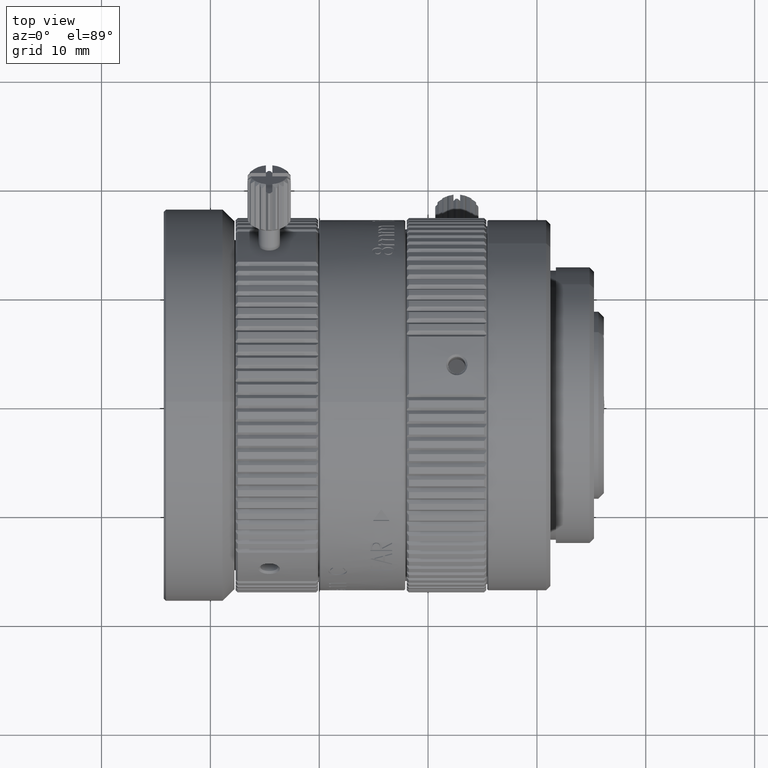
[diagram: clean part render]
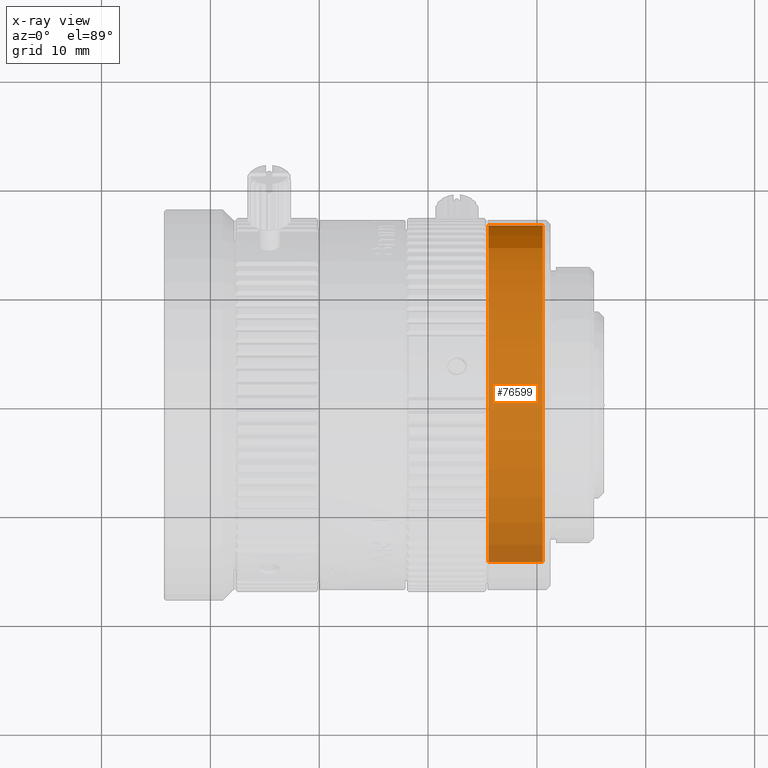
[diagram: x-ray — body ghosted, one internal face saturated and labeled with its STEP entity id]
A machine part, top view, then the same camera in x-ray: the body is ghosted and one INTERNAL B-rep face — a face not visible from any outside direction — is saturated and labeled: STEP entity #76599.
In plain terms, the highlighted cylindrical surface (partial cylindrical patch) has radius 16.5 mm, axis along (-1, 0, 0).
Its self-contained STEP definition (entity closure, byte-faithful):
#2239 = DIRECTION ( 'NONE',  ( 1.000000000000000000, -0.000000000000000000, -0.000000000000000000 ) ) ;
#5555 = CARTESIAN_POINT ( 'NONE',  ( 15.53999999999999915, -14.28941916244320609, -8.250000000000069278 ) ) ;
#9178 = AXIS2_PLACEMENT_3D ( 'NONE', #42638, #2239, #12457 ) ;
#11793 = CARTESIAN_POINT ( 'NONE',  ( 20.54000000000000270, 14.28941916244321853, 8.250000000000078160 ) ) ;
#12457 = DIRECTION ( 'NONE',  ( 0.000000000000000000, -0.8660254037844363761, -0.5000000000000039968 ) ) ;
#12794 = ORIENTED_EDGE ( 'NONE', *, *, #73450, .F. ) ;
#15654 = VERTEX_POINT ( 'NONE', #64074 ) ;
#16380 = CARTESIAN_POINT ( 'NONE',  ( 15.44000000000000306, -14.28941916244320609, -8.250000000000069278 ) ) ;
#16536 = DIRECTION ( 'NONE',  ( -1.000000000000000000, 0.000000000000000000, 0.000000000000000000 ) ) ;
#22264 = DIRECTION ( 'NONE',  ( -1.000000000000000000, 0.000000000000000000, 0.000000000000000000 ) ) ;
#23509 = DIRECTION ( 'NONE',  ( 0.000000000000000000, -0.8660254037844363761, -0.5000000000000039968 ) ) ;
#24760 = ORIENTED_EDGE ( 'NONE', *, *, #68553, .F. ) ;
#25256 = EDGE_CURVE ( 'NONE', #42092, #39262, #66454, .T. ) ;
#28644 = CARTESIAN_POINT ( 'NONE',  ( 20.54000000000000270, -14.28941916244320609, -8.250000000000069278 ) ) ;
#29081 = DIRECTION ( 'NONE',  ( 0.000000000000000000, -0.8660254037844363761, -0.5000000000000039968 ) ) ;
#31529 = LINE ( 'NONE', #37391, #64072 ) ;
#35150 = VERTEX_POINT ( 'NONE', #5555 ) ;
#36754 = CIRCLE ( 'NONE', #9178, 16.50000000000001421 ) ;
#36827 = ORIENTED_EDGE ( 'NONE', *, *, #70262, .T. ) ;
#37391 = CARTESIAN_POINT ( 'NONE',  ( 15.44000000000000306, 14.28941916244321853, 8.250000000000078160 ) ) ;
#38104 = AXIS2_PLACEMENT_3D ( 'NONE', #77220, #46642, #23509 ) ;
#39262 = VERTEX_POINT ( 'NONE', #28644 ) ;
#42092 = VERTEX_POINT ( 'NONE', #11793 ) ;
#42638 = CARTESIAN_POINT ( 'NONE',  ( 15.53999999999999915, 7.057796218657209954E-15, 3.635399248874459575E-15 ) ) ;
#46642 = DIRECTION ( 'NONE',  ( -1.000000000000000000, 0.000000000000000000, 0.000000000000000000 ) ) ;
#52669 = AXIS2_PLACEMENT_3D ( 'NONE', #63963, #16536, #29081 ) ;
#55808 = DIRECTION ( 'NONE',  ( -1.000000000000000000, 0.000000000000000000, 0.000000000000000000 ) ) ;
#57935 = LINE ( 'NONE', #16380, #70441 ) ;
#59177 = FACE_OUTER_BOUND ( 'NONE', #69801, .T. ) ;
#63963 = CARTESIAN_POINT ( 'NONE',  ( 20.54000000000000270, 7.057796218657209954E-15, 3.635399248874459575E-15 ) ) ;
#64072 = VECTOR ( 'NONE', #55808, 1000.000000000000000 ) ;
#64074 = CARTESIAN_POINT ( 'NONE',  ( 15.53999999999999915, 14.28941916244321853, 8.250000000000078160 ) ) ;
#66454 = CIRCLE ( 'NONE', #52669, 16.50000000000001421 ) ;
#67706 = ORIENTED_EDGE ( 'NONE', *, *, #25256, .F. ) ;
#68553 = EDGE_CURVE ( 'NONE', #35150, #15654, #36754, .T. ) ;
#69801 = EDGE_LOOP ( 'NONE', ( #67706, #36827, #24760, #12794 ) ) ;
#70262 = EDGE_CURVE ( 'NONE', #42092, #15654, #31529, .T. ) ;
#70441 = VECTOR ( 'NONE', #22264, 1000.000000000000000 ) ;
#71721 = CYLINDRICAL_SURFACE ( 'NONE', #38104, 16.50000000000001421 ) ;
#73450 = EDGE_CURVE ( 'NONE', #39262, #35150, #57935, .T. ) ;
#76599 = ADVANCED_FACE ( 'NONE', ( #59177 ), #71721, .F. ) ;
#77220 = CARTESIAN_POINT ( 'NONE',  ( 15.44000000000000306, 7.057796218657209954E-15, 3.635399248874459575E-15 ) ) ;